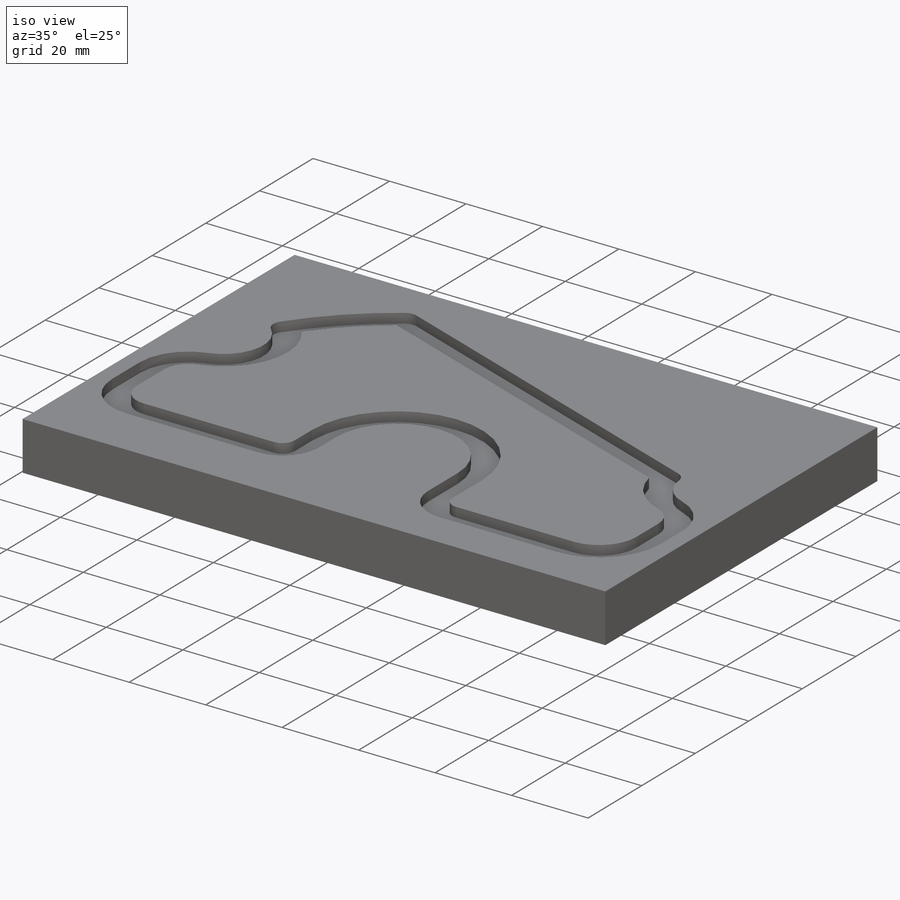
[diagram: iso view]
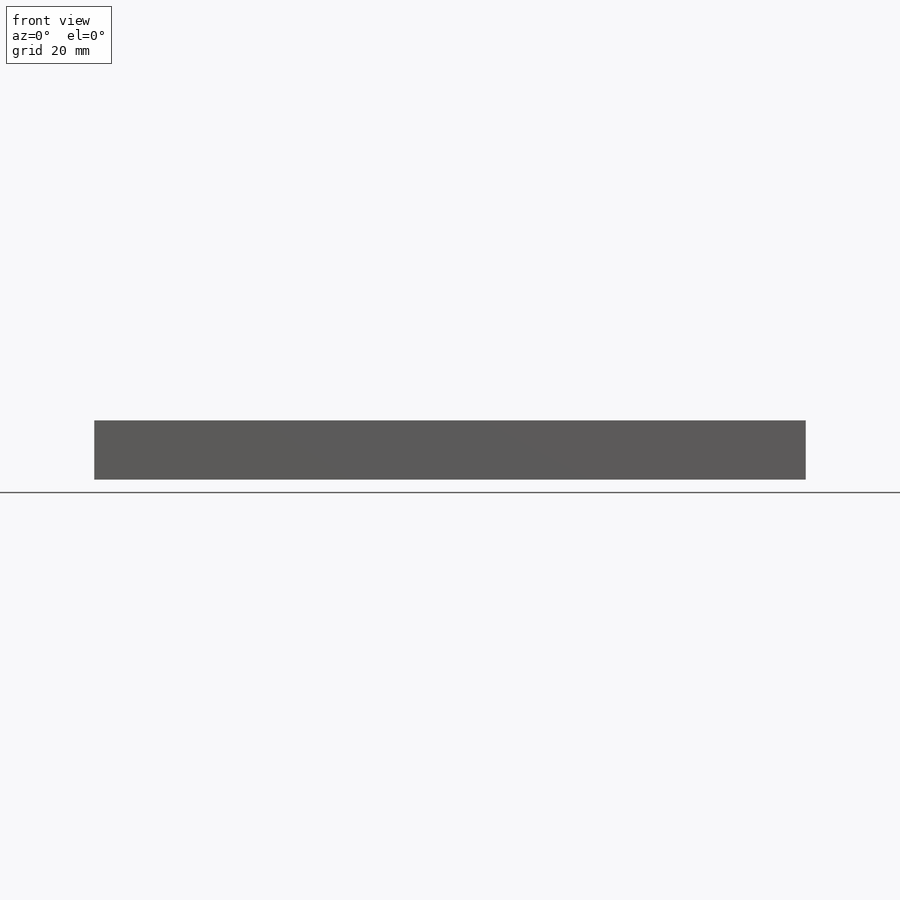
[diagram: front view]
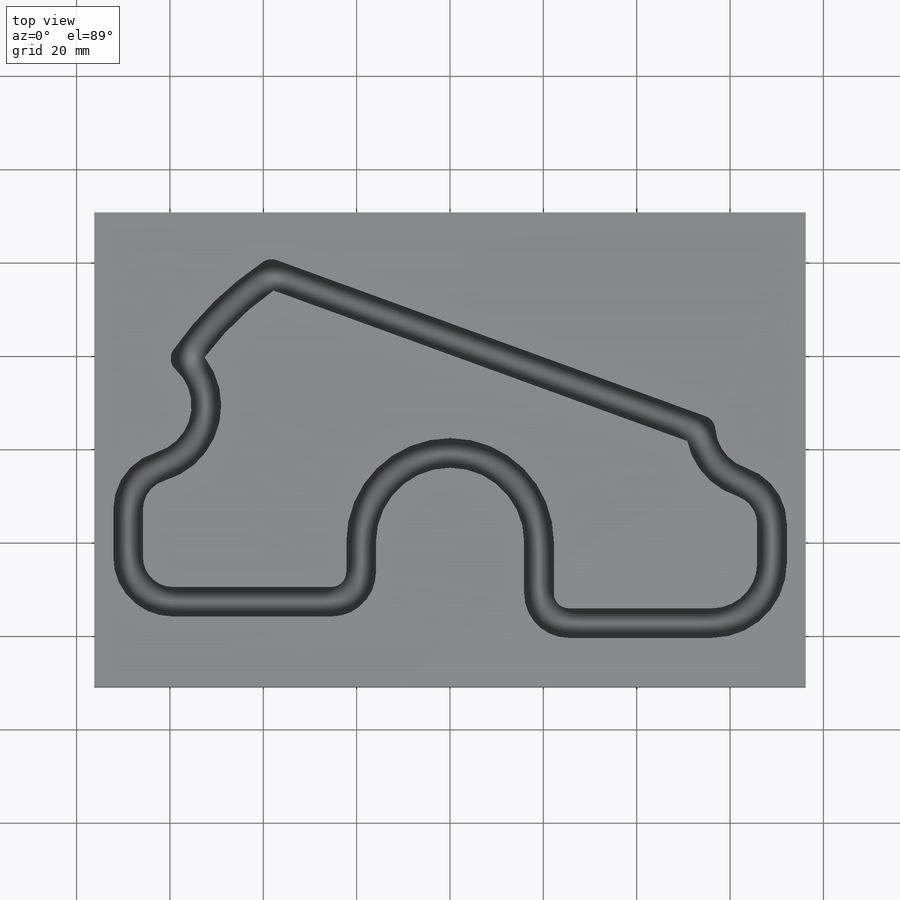
[diagram: top view]
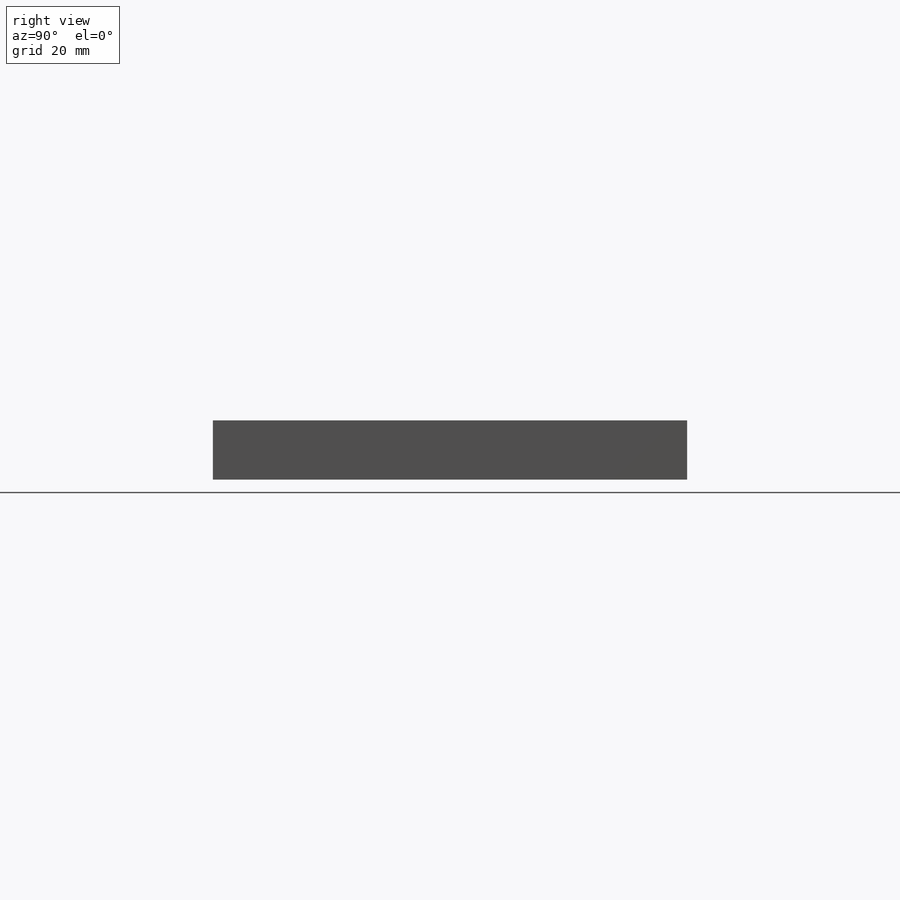
[diagram: right view]
SOLIDWORKS PART (.sldprt)
format: sldprt  version: not decoded by parser v0  size: 328,704 bytes
history: native  units: mm
features: sketch x3, extrude x3, fillet x3, material x1 (+13 scaffold rows collapsed)
feature tree (23):
  scaffold x13  (default folders/planes/origin — collapsed)
  material  "Material <not specified>"
  sketch  "Sketch1"  dims[c1.D1=3.175mm c1.D2=9.652mm c1.D3=6.35mm c2.D1=160.0deg c2.D4=6.35mm]
  extrude  "Boss-Extrude1"  Depth=2.54mm
  sketch  "Sketch2"  dims[c1.D1=101.6mm c1.D2=16.764mm c1.D3=16.764mm c1.D4=152.4mm c1.6.=152.4mm c1.D5=76.2mm c1.D6=~79.052433mm c2.D5=152.4mm c2.D4=30.988mm c2.D1=12.7mm c2.D2=12.7mm c2.D3=12.7mm c3.D4=12.7mm c3.D1=3.175mm c3.D2=3.175mm c4.D1=3.175mm c4.D2=3.175mm]
  extrude  "Boss-Extrude2"  Depth=10.16mm
  sketch  "Sketch9"  dims[c1.D1=6.35mm c1.D2=6.35mm c1.D3=6.35mm c2.D1=6.35mm c2.D2=0.0mm]
  extrude  "Boss-Extrude4"  Depth=2.54mm
  fillet  "Fillet1"  Radius=3.175mm
  fillet  "Fillet2"  Radius=3.175mm
  fillet  "Fillet3"  Radius=3.175mm
decode coverage: 9 of 9 modeling features carry decoded parameters
note: ~ marks probable driven/reference dimensions
note: suppression state not decoded; provenance and decode notes live in map.json
